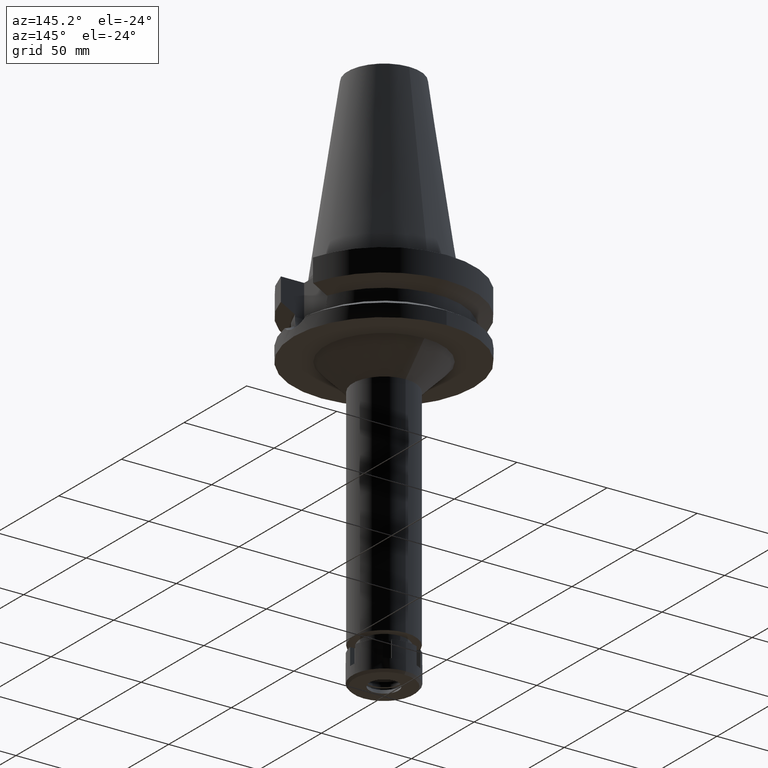
[diagram: clean part render]
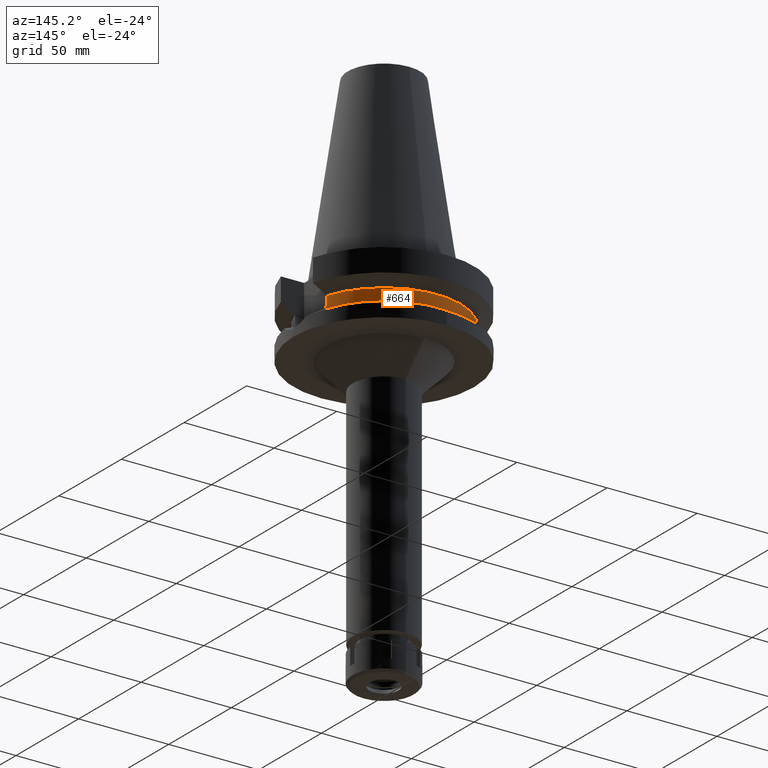
[diagram: same view with one face highlighted and labeled with its STEP entity id]
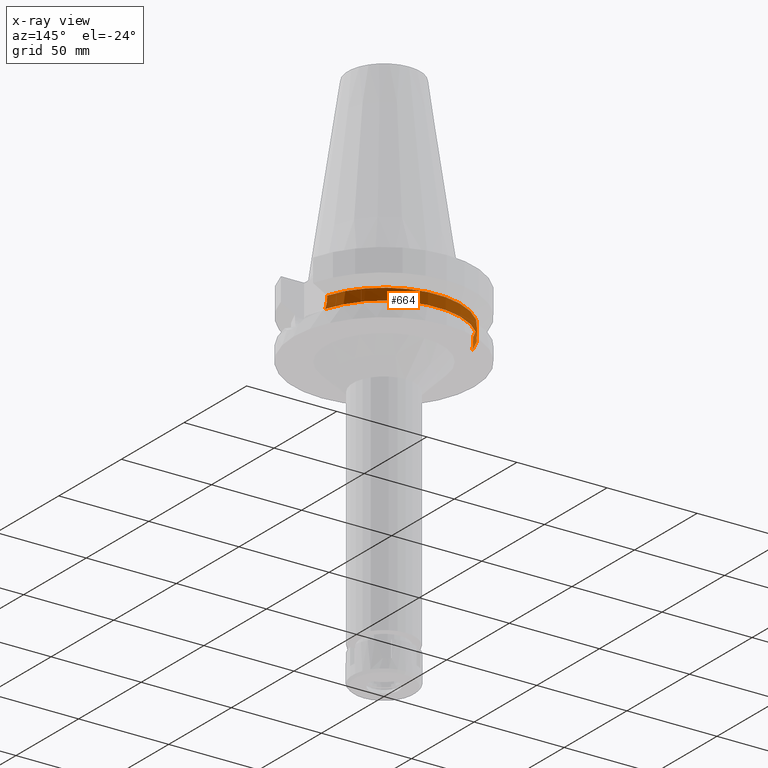
[diagram: x-ray of the same camera — body ghosted, the highlighted face saturated]
A machine part, auxiliary view. The second image highlights one B-rep face of the part: STEP entity #664.
The next image is the same camera in x-ray: the body ghosted, the highlighted face saturated — about 1% of this face is hidden behind the body in this view.
In plain terms, the highlighted cylindrical surface (partial cylindrical patch) has radius 42.5 mm, axis along (0, 0, -1).
Its self-contained STEP definition (entity closure, byte-faithful):
#9 = EDGE_LOOP ( 'NONE', ( #705, #1867, #2678, #1935, #3670, #1570 ) ) ;
#14 = CARTESIAN_POINT ( 'NONE',  ( -40.51083297141000372, 12.84999657442999954, -19.99284554354000321 ) ) ;
#55 = CARTESIAN_POINT ( 'NONE',  ( -40.51818735908894809, 12.82722126770212157, -22.03688626290332309 ) ) ;
#57 = CARTESIAN_POINT ( 'NONE',  ( -40.85052569294000335, 11.72538061688000077, -26.40718074535000426 ) ) ;
#84 = CARTESIAN_POINT ( 'NONE',  ( 40.68244012169061108, 12.29668327074609557, -24.88704817341103848 ) ) ;
#96 = EDGE_CURVE ( 'NONE', #3243, #2486, #989, .T. ) ;
#111 = CARTESIAN_POINT ( 'NONE',  ( -40.65436025735130698, 12.39001373507905868, -24.66363152923814894 ) ) ;
#127 = VERTEX_POINT ( 'NONE', #3030 ) ;
#172 = CARTESIAN_POINT ( 'NONE',  ( 40.62482334720413490, 12.48526811858512353, -24.19322874753378727 ) ) ;
#341 = FACE_OUTER_BOUND ( 'NONE', #9, .T. ) ;
#372 = CARTESIAN_POINT ( 'NONE',  ( 40.85052569294000335, 11.72538061688000077, -26.40718074535000426 ) ) ;
#543 = LINE ( 'NONE', #14, #1951 ) ;
#652 = CARTESIAN_POINT ( 'NONE',  ( -40.51083188481999997, 12.85000000000001563, -21.59155125953240528 ) ) ;
#664 = ADVANCED_FACE ( 'NONE', ( #341 ), #1469, .T. ) ;
#683 = CARTESIAN_POINT ( 'NONE',  ( 40.74530080281117961, 12.08736009434965553, -25.53452049776151611 ) ) ;
#705 = ORIENTED_EDGE ( 'NONE', *, *, #2868, .F. ) ;
#864 = VECTOR ( 'NONE', #1188, 1000.000000000000227 ) ;
#910 = CARTESIAN_POINT ( 'NONE',  ( -40.59544857123437822, 12.58031941217381799, -23.76894563305584640 ) ) ;
#930 = CARTESIAN_POINT ( 'NONE',  ( -40.59188576338534915, 12.59181613885846929, -23.71309950380453202 ) ) ;
#953 = B_SPLINE_CURVE_WITH_KNOTS ( 'NONE', 3,
 ( #3599, #2438, #683, #84, #1257, #3260, #172, #2387, #1217, #1752, #2932, #2964, #3643, #1833 ),
 .UNSPECIFIED., .F., .F.,
 ( 4, 2, 2, 1, 1, 2, 2, 4 ),
 ( 0.0000000000000000000, 0.2500000000000013323, 0.3750000000000030531, 0.4375000000000029976, 0.4687500000000029421, 0.4843750000000029421, 0.5000000000000028866, 1.000000000000000000 ),
 .UNSPECIFIED. ) ;
#984 = CIRCLE ( 'NONE', #1282, 42.50000000000002132 ) ;
#989 = CIRCLE ( 'NONE', #1227, 42.50000000000000000 ) ;
#1160 = DIRECTION ( 'NONE',  ( 9.390170942255792672E-07, 2.960342106127936188E-06, -0.9999999999951774132 ) ) ;
#1161 = EDGE_CURVE ( 'NONE', #3243, #1971, #953, .T. ) ;
#1188 = DIRECTION ( 'NONE',  ( 9.395523002366738675E-07, -2.962029390682913821E-06, 0.9999999999951717511 ) ) ;
#1212 = CARTESIAN_POINT ( 'NONE',  ( -40.51083188481999997, 12.84999999999999964, -21.14999999999999858 ) ) ;
#1217 = CARTESIAN_POINT ( 'NONE',  ( 40.60613069944914599, 12.54580339937320943, -23.92957563982541913 ) ) ;
#1227 = AXIS2_PLACEMENT_3D ( 'NONE', #2418, #2717, #2991 ) ;
#1257 = CARTESIAN_POINT ( 'NONE',  ( 40.66327078203668322, 12.35978912949376252, -24.67232732615307000 ) ) ;
#1282 = AXIS2_PLACEMENT_3D ( 'NONE', #1314, #2453, #1592 ) ;
#1314 = CARTESIAN_POINT ( 'NONE',  ( 0.0000000000000000000, 1.006319759053999930E-14, -19.99281925464999787 ) ) ;
#1469 = CYLINDRICAL_SURFACE ( 'NONE', #2909, 42.50000000000000000 ) ;
#1570 = ORIENTED_EDGE ( 'NONE', *, *, #2995, .F. ) ;
#1592 = DIRECTION ( 'NONE',  ( -0.9531960443486575674, 0.3023529411764863672, 0.0000000000000000000 ) ) ;
#1694 = CARTESIAN_POINT ( 'NONE',  ( 0.0000000000000000000, 2.651237855473999832E-14, 116.4899999999999949 ) ) ;
#1745 = CARTESIAN_POINT ( 'NONE',  ( 40.51083188481999997, 12.84999999999999964, -21.14999999999999858 ) ) ;
#1752 = CARTESIAN_POINT ( 'NONE',  ( 40.60256501628037284, 12.55733133482484476, -23.87702281264044402 ) ) ;
#1833 = CARTESIAN_POINT ( 'NONE',  ( 40.51083188481999997, 12.84999999999999964, -21.14999999999999858 ) ) ;
#1867 = ORIENTED_EDGE ( 'NONE', *, *, #2578, .T. ) ;
#1935 = ORIENTED_EDGE ( 'NONE', *, *, #1161, .F. ) ;
#1951 = VECTOR ( 'NONE', #1160, 999.9999999999998863 ) ;
#1971 = VERTEX_POINT ( 'NONE', #3362 ) ;
#2067 = CARTESIAN_POINT ( 'NONE',  ( -40.58662774857591415, 12.60877356363315727, -23.62931612666511683 ) ) ;
#2068 = CARTESIAN_POINT ( 'NONE',  ( -40.51083188481999997, 12.84999999999999964, -19.99281925464999787 ) ) ;
#2276 = VERTEX_POINT ( 'NONE', #3638 ) ;
#2374 = CARTESIAN_POINT ( 'NONE',  ( -40.59737061725674323, 12.57411364518324604, -23.79856269427695992 ) ) ;
#2386 = EDGE_CURVE ( 'NONE', #1971, #2276, #3153, .T. ) ;
#2387 = CARTESIAN_POINT ( 'NONE',  ( 40.61156285954857026, 12.52823285237359130, -24.00849237159464167 ) ) ;
#2418 = CARTESIAN_POINT ( 'NONE',  ( 0.0000000000000000000, 0.0000000000000000000, -26.40718074535000426 ) ) ;
#2438 = CARTESIAN_POINT ( 'NONE',  ( 40.79434480643646310, 11.92111146967505952, -25.97063141241893547 ) ) ;
#2453 = DIRECTION ( 'NONE',  ( 0.0000000000000000000, 0.0000000000000000000, -1.000000000000000000 ) ) ;
#2486 = VERTEX_POINT ( 'NONE', #57 ) ;
#2578 = EDGE_CURVE ( 'NONE', #3291, #2276, #984, .T. ) ;
#2614 = DIRECTION ( 'NONE',  ( 0.0000000000000000000, 0.0000000000000000000, -1.000000000000000000 ) ) ;
#2625 = DIRECTION ( 'NONE',  ( 0.0000000000000000000, -1.000000000000000000, 0.0000000000000000000 ) ) ;
#2631 = CARTESIAN_POINT ( 'NONE',  ( -40.73816962964881583, 12.11682243018211302, -25.53412644635514539 ) ) ;
#2677 = B_SPLINE_CURVE_WITH_KNOTS ( 'NONE', 3,
 ( #1212, #652, #55, #3458, #3253, #3473, #3487, #2067, #930, #910, #2374, #111, #2631, #3221 ),
 .UNSPECIFIED., .F., .F.,
 ( 4, 2, 2, 1, 1, 2, 2, 4 ),
 ( 0.0000000000000000000, 0.2500000000000047184, 0.3750000000000061617, 0.4375000000000069389, 0.4687500000000071054, 0.4843750000000073275, 0.5000000000000074385, 1.000000000000000000 ),
 .UNSPECIFIED. ) ;
#2678 = ORIENTED_EDGE ( 'NONE', *, *, #2386, .F. ) ;
#2717 = DIRECTION ( 'NONE',  ( 0.0000000000000000000, 0.0000000000000000000, 1.000000000000000000 ) ) ;
#2868 = EDGE_CURVE ( 'NONE', #3291, #127, #543, .T. ) ;
#2909 = AXIS2_PLACEMENT_3D ( 'NONE', #1694, #2614, #2625 ) ;
#2932 = CARTESIAN_POINT ( 'NONE',  ( 40.60092153270026927, 12.56264230965691020, -23.85246783902318413 ) ) ;
#2964 = CARTESIAN_POINT ( 'NONE',  ( 40.54024891269926911, 12.75863239535543059, -22.93144942354764737 ) ) ;
#2991 = DIRECTION ( 'NONE',  ( 0.0000000000000000000, 1.000000000000000000, 0.0000000000000000000 ) ) ;
#2995 = EDGE_CURVE ( 'NONE', #127, #2486, #2677, .T. ) ;
#3030 = CARTESIAN_POINT ( 'NONE',  ( -40.51083188481999997, 12.84999999999999964, -21.14999999999999858 ) ) ;
#3153 = LINE ( 'NONE', #1745, #864 ) ;
#3221 = CARTESIAN_POINT ( 'NONE',  ( -40.85052569294000335, 11.72538061688000077, -26.40718074535000426 ) ) ;
#3243 = VERTEX_POINT ( 'NONE', #372 ) ;
#3253 = CARTESIAN_POINT ( 'NONE',  ( -40.54944812473203086, 12.72805978472145938, -22.93052269426958034 ) ) ;
#3260 = CARTESIAN_POINT ( 'NONE',  ( 40.63719310363511283, 12.44501386261014453, -24.35254574346263823 ) ) ;
#3291 = VERTEX_POINT ( 'NONE', #2068 ) ;
#3362 = CARTESIAN_POINT ( 'NONE',  ( 40.51083188481999997, 12.84999999999999964, -21.14999999999999858 ) ) ;
#3458 = CARTESIAN_POINT ( 'NONE',  ( -40.54025378189581374, 12.75731467218758297, -22.70686882179157351 ) ) ;
#3473 = CARTESIAN_POINT ( 'NONE',  ( -40.56599794183718188, 12.67508828619823724, -23.26599945041199646 ) ) ;
#3487 = CARTESIAN_POINT ( 'NONE',  ( -40.57496242610246640, 12.64633064307898636, -23.43373649620420451 ) ) ;
#3599 = CARTESIAN_POINT ( 'NONE',  ( 40.85052569294000335, 11.72538061688000077, -26.40718074535000426 ) ) ;
#3638 = CARTESIAN_POINT ( 'NONE',  ( 40.51083297203000200, 12.84999657246999938, -19.99284555851999912 ) ) ;
#3643 = CARTESIAN_POINT ( 'NONE',  ( 40.51083188481999287, 12.84999999999999964, -22.03306420386933695 ) ) ;
#3670 = ORIENTED_EDGE ( 'NONE', *, *, #96, .T. ) ;